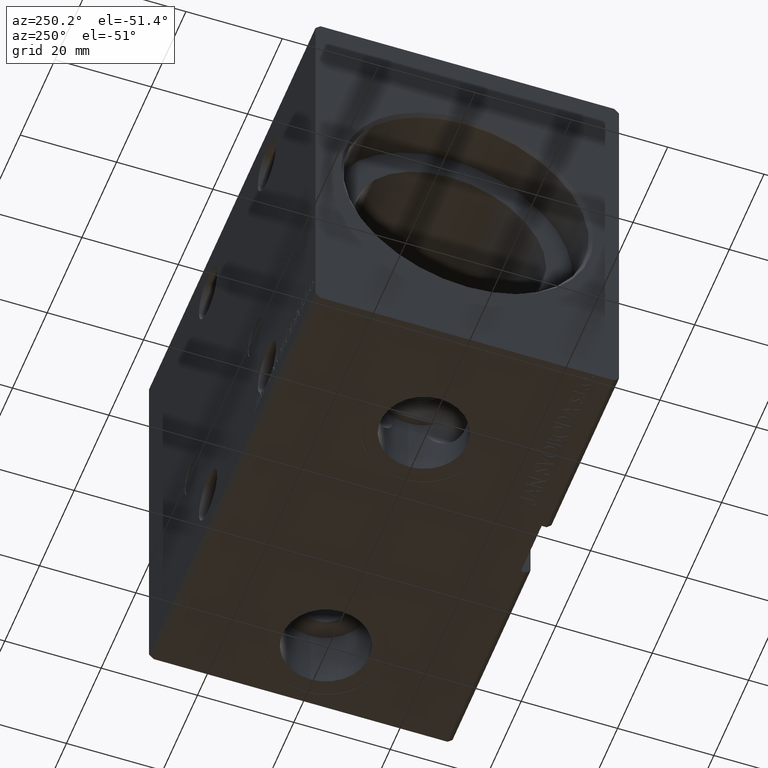
[diagram: clean part render]
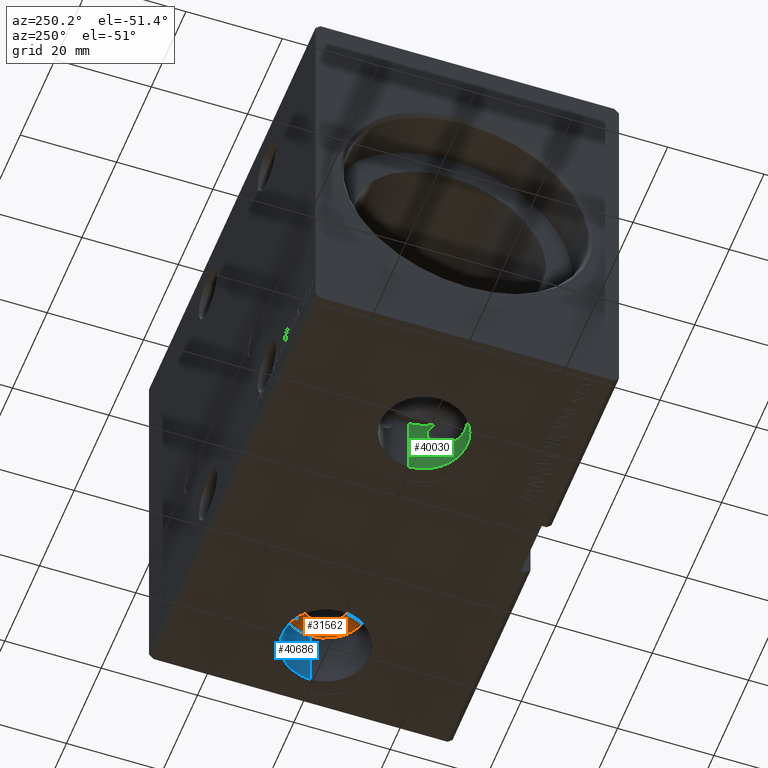
[diagram: same view with three faces highlighted in distinct colors, each labeled with its STEP entity id]
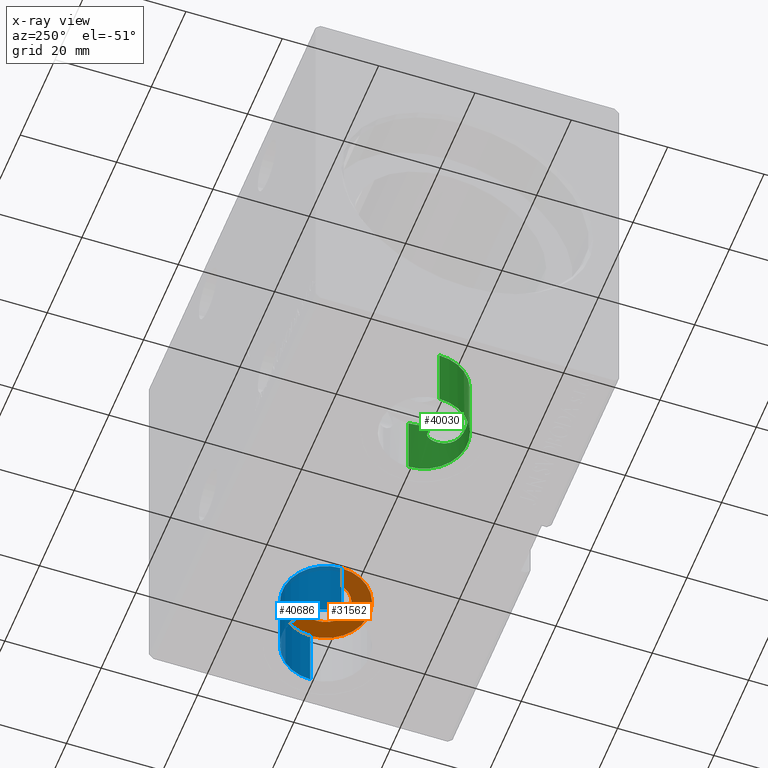
[diagram: x-ray of the same camera — body ghosted, the three highlighted faces saturated]
A machine part, auxiliary view with three faces highlighted in distinct colors.
The next image is the same camera in x-ray (body ghosted, the three faces saturated) — at least one of them is partly hidden behind the body in this view.
Their STEP definitions:

[orange] entity #31562 — the highlighted planar face has unit normal (0, 0, -1).
#402 = DIRECTION ( 'NONE',  ( -1.000000000000000000, 0.000000000000000000, -0.000000000000000000 ) ) ;
#3503 = FACE_OUTER_BOUND ( 'NONE', #39855, .T. ) ;
#3606 = CARTESIAN_POINT ( 'NONE',  ( 86.50000000000001421, -9.299064544017768038E-15, -28.80000000000000782 ) ) ;
#3683 = VERTEX_POINT ( 'NONE', #3606 ) ;
#6401 = PLANE ( 'NONE',  #33082 ) ;
#6933 = DIRECTION ( 'NONE',  ( 0.000000000000000000, 0.000000000000000000, -1.000000000000000000 ) ) ;
#7246 = CIRCLE ( 'NONE', #32384, 8.999999999999994671 ) ;
#8394 = DIRECTION ( 'NONE',  ( 0.000000000000000000, 0.000000000000000000, -1.000000000000000000 ) ) ;
#9289 = FACE_BOUND ( 'NONE', #12474, .T. ) ;
#10017 = VERTEX_POINT ( 'NONE', #32415 ) ;
#10483 = EDGE_CURVE ( 'NONE', #10017, #3683, #16918, .T. ) ;
#11697 = DIRECTION ( 'NONE',  ( -1.000000000000000000, 0.000000000000000000, 0.000000000000000000 ) ) ;
#11901 = DIRECTION ( 'NONE',  ( 0.000000000000000000, 0.000000000000000000, -1.000000000000000000 ) ) ;
#12021 = CARTESIAN_POINT ( 'NONE',  ( 72.50000000000001421, -9.911387943591445357E-15, -28.80000000000000782 ) ) ;
#12474 = EDGE_LOOP ( 'NONE', ( #14365, #15870 ) ) ;
#13137 = DIRECTION ( 'NONE',  ( -1.000000000000000000, 0.000000000000000000, 0.000000000000000000 ) ) ;
#14365 = ORIENTED_EDGE ( 'NONE', *, *, #10483, .F. ) ;
#15870 = ORIENTED_EDGE ( 'NONE', *, *, #22717, .F. ) ;
#16918 = CIRCLE ( 'NONE', #20236, 5.000000000000004441 ) ;
#17228 = CIRCLE ( 'NONE', #25181, 8.999999999999994671 ) ;
#18458 = AXIS2_PLACEMENT_3D ( 'NONE', #24132, #8394, #11697 ) ;
#20236 = AXIS2_PLACEMENT_3D ( 'NONE', #22416, #28632, #31736 ) ;
#22416 = CARTESIAN_POINT ( 'NONE',  ( 81.50000000000000000, -9.911387943591445357E-15, -28.80000000000000782 ) ) ;
#22717 = EDGE_CURVE ( 'NONE', #3683, #10017, #37002, .T. ) ;
#23721 = ORIENTED_EDGE ( 'NONE', *, *, #24680, .T. ) ;
#24132 = CARTESIAN_POINT ( 'NONE',  ( 81.50000000000000000, -9.911387943591445357E-15, -28.80000000000000782 ) ) ;
#24135 = DIRECTION ( 'NONE',  ( -1.000000000000000000, 0.000000000000000000, 0.000000000000000000 ) ) ;
#24680 = EDGE_CURVE ( 'NONE', #36983, #36748, #7246, .T. ) ;
#25181 = AXIS2_PLACEMENT_3D ( 'NONE', #36978, #11901, #24135 ) ;
#28632 = DIRECTION ( 'NONE',  ( 0.000000000000000000, 0.000000000000000000, -1.000000000000000000 ) ) ;
#28755 = DIRECTION ( 'NONE',  ( 0.000000000000000000, 0.000000000000000000, -1.000000000000000000 ) ) ;
#30437 = ORIENTED_EDGE ( 'NONE', *, *, #32139, .T. ) ;
#31562 = ADVANCED_FACE ( 'NONE', ( #9289, #3503 ), #6401, .T. ) ;
#31657 = CARTESIAN_POINT ( 'NONE',  ( 0.000000000000000000, 0.000000000000000000, -28.80000000000000782 ) ) ;
#31736 = DIRECTION ( 'NONE',  ( -1.000000000000000000, 0.000000000000000000, 0.000000000000000000 ) ) ;
#31785 = CARTESIAN_POINT ( 'NONE',  ( 81.50000000000000000, -9.911387943591445357E-15, -28.80000000000000782 ) ) ;
#32139 = EDGE_CURVE ( 'NONE', #36748, #36983, #17228, .T. ) ;
#32384 = AXIS2_PLACEMENT_3D ( 'NONE', #31785, #6933, #13137 ) ;
#32415 = CARTESIAN_POINT ( 'NONE',  ( 76.50000000000000000, -9.911387943591445357E-15, -28.80000000000000782 ) ) ;
#33082 = AXIS2_PLACEMENT_3D ( 'NONE', #31657, #28755, #402 ) ;
#36748 = VERTEX_POINT ( 'NONE', #12021 ) ;
#36978 = CARTESIAN_POINT ( 'NONE',  ( 81.50000000000000000, -9.911387943591445357E-15, -28.80000000000000782 ) ) ;
#36983 = VERTEX_POINT ( 'NONE', #38108 ) ;
#37002 = CIRCLE ( 'NONE', #18458, 5.000000000000004441 ) ;
#38108 = CARTESIAN_POINT ( 'NONE',  ( 90.50000000000000000, -8.809205824358827446E-15, -28.80000000000000782 ) ) ;
#39855 = EDGE_LOOP ( 'NONE', ( #30437, #23721 ) ) ;

[blue] entity #40686 — the highlighted cylindrical surface (partial cylindrical patch) has radius 9 mm, axis along (-0, -0, -1).
#2496 = CARTESIAN_POINT ( 'NONE',  ( 81.50000000000000000, -9.911387943591445357E-15, -28.80000000000000782 ) ) ;
#3121 = ORIENTED_EDGE ( 'NONE', *, *, #11670, .T. ) ;
#5258 = DIRECTION ( 'NONE',  ( -0.000000000000000000, -0.000000000000000000, -1.000000000000000000 ) ) ;
#6004 = CYLINDRICAL_SURFACE ( 'NONE', #18753, 8.999999999999994671 ) ;
#6618 = CARTESIAN_POINT ( 'NONE',  ( 90.50000000000000000, -8.809205824358827446E-15, -42.40000000000000568 ) ) ;
#8212 = ORIENTED_EDGE ( 'NONE', *, *, #26938, .T. ) ;
#8322 = ORIENTED_EDGE ( 'NONE', *, *, #32139, .F. ) ;
#8900 = DIRECTION ( 'NONE',  ( -0.000000000000000000, -0.000000000000000000, -1.000000000000000000 ) ) ;
#10211 = EDGE_CURVE ( 'NONE', #36983, #36923, #29907, .T. ) ;
#10947 = LINE ( 'NONE', #39339, #18301 ) ;
#11670 = EDGE_CURVE ( 'NONE', #36748, #17475, #10947, .T. ) ;
#11901 = DIRECTION ( 'NONE',  ( 0.000000000000000000, 0.000000000000000000, -1.000000000000000000 ) ) ;
#12021 = CARTESIAN_POINT ( 'NONE',  ( 72.50000000000001421, -9.911387943591445357E-15, -28.80000000000000782 ) ) ;
#13851 = DIRECTION ( 'NONE',  ( -0.000000000000000000, -0.000000000000000000, -1.000000000000000000 ) ) ;
#17228 = CIRCLE ( 'NONE', #25181, 8.999999999999994671 ) ;
#17475 = VERTEX_POINT ( 'NONE', #20985 ) ;
#17623 = DIRECTION ( 'NONE',  ( 0.000000000000000000, 0.000000000000000000, -1.000000000000000000 ) ) ;
#18301 = VECTOR ( 'NONE', #13851, 1000.000000000000000 ) ;
#18548 = CIRCLE ( 'NONE', #37753, 8.999999999999994671 ) ;
#18753 = AXIS2_PLACEMENT_3D ( 'NONE', #2496, #8900, #27957 ) ;
#20466 = ORIENTED_EDGE ( 'NONE', *, *, #10211, .F. ) ;
#20985 = CARTESIAN_POINT ( 'NONE',  ( 72.50000000000001421, -9.911387943591445357E-15, -42.40000000000000568 ) ) ;
#21196 = CARTESIAN_POINT ( 'NONE',  ( 90.50000000000000000, -8.809205824358827446E-15, -28.80000000000000782 ) ) ;
#21312 = EDGE_LOOP ( 'NONE', ( #20466, #8322, #3121, #8212 ) ) ;
#24135 = DIRECTION ( 'NONE',  ( -1.000000000000000000, 0.000000000000000000, 0.000000000000000000 ) ) ;
#25181 = AXIS2_PLACEMENT_3D ( 'NONE', #36978, #11901, #24135 ) ;
#26938 = EDGE_CURVE ( 'NONE', #17475, #36923, #18548, .T. ) ;
#27559 = DIRECTION ( 'NONE',  ( -1.000000000000000000, 0.000000000000000000, 0.000000000000000000 ) ) ;
#27957 = DIRECTION ( 'NONE',  ( -1.000000000000000000, 0.000000000000000000, 0.000000000000000000 ) ) ;
#29907 = LINE ( 'NONE', #21196, #37461 ) ;
#30468 = CARTESIAN_POINT ( 'NONE',  ( 81.50000000000000000, -9.911387943591445357E-15, -42.40000000000000568 ) ) ;
#32139 = EDGE_CURVE ( 'NONE', #36748, #36983, #17228, .T. ) ;
#36748 = VERTEX_POINT ( 'NONE', #12021 ) ;
#36923 = VERTEX_POINT ( 'NONE', #6618 ) ;
#36978 = CARTESIAN_POINT ( 'NONE',  ( 81.50000000000000000, -9.911387943591445357E-15, -28.80000000000000782 ) ) ;
#36983 = VERTEX_POINT ( 'NONE', #38108 ) ;
#37461 = VECTOR ( 'NONE', #5258, 1000.000000000000000 ) ;
#37486 = FACE_OUTER_BOUND ( 'NONE', #21312, .T. ) ;
#37753 = AXIS2_PLACEMENT_3D ( 'NONE', #30468, #17623, #27559 ) ;
#38108 = CARTESIAN_POINT ( 'NONE',  ( 90.50000000000000000, -8.809205824358827446E-15, -28.80000000000000782 ) ) ;
#39339 = CARTESIAN_POINT ( 'NONE',  ( 72.50000000000001421, -9.911387943591445357E-15, -28.80000000000000782 ) ) ;
#40686 = ADVANCED_FACE ( 'NONE', ( #37486 ), #6004, .F. ) ;

[green] entity #40030 — the highlighted cylindrical surface (partial cylindrical patch) has radius 9 mm, axis along (-0, -0, -1).
#374 = CARTESIAN_POINT ( 'NONE',  ( 31.40682111085803996, -6.336490055253520381, -35.51646266891867754 ) ) ;
#759 = CARTESIAN_POINT ( 'NONE',  ( 23.03834888611822151, -8.784446765826636749, -33.27765657024913537 ) ) ;
#1395 = AXIS2_PLACEMENT_3D ( 'NONE', #40851, #27601, #12264 ) ;
#1473 = LINE ( 'NONE', #27134, #28327 ) ;
#1538 = ORIENTED_EDGE ( 'NONE', *, *, #11486, .F. ) ;
#1730 = CARTESIAN_POINT ( 'NONE',  ( 25.80280332647018682, -8.966720906279062930, -36.27372584527573451 ) ) ;
#2104 = EDGE_CURVE ( 'NONE', #2602, #2901, #12690, .T. ) ;
#2602 = VERTEX_POINT ( 'NONE', #3439 ) ;
#2901 = VERTEX_POINT ( 'NONE', #4415 ) ;
#2923 = CARTESIAN_POINT ( 'NONE',  ( 25.00000000000000000, -2.665753871451547918E-15, -28.80000000000000782 ) ) ;
#3439 = CARTESIAN_POINT ( 'NONE',  ( 34.00000000000000000, -1.563571752218929810E-15, -42.40000000000000568 ) ) ;
#3470 = CARTESIAN_POINT ( 'NONE',  ( 32.88997847107852124, -4.333604162310006558, -29.57671200896456654 ) ) ;
#3598 = ORIENTED_EDGE ( 'NONE', *, *, #32610, .F. ) ;
#3862 = CARTESIAN_POINT ( 'NONE',  ( 28.00000000000009592, -8.485281374238560659, -36.75000000000000000 ) ) ;
#3877 = CARTESIAN_POINT ( 'NONE',  ( 29.22269784940499093, -7.952126355574261396, -36.61103847274182499 ) ) ;
#4400 = CARTESIAN_POINT ( 'NONE',  ( 28.00000000000009592, -8.485281374238560659, -36.75000000000000000 ) ) ;
#4415 = CARTESIAN_POINT ( 'NONE',  ( 16.00000000000000000, -2.665753871451547918E-15, -42.40000000000000568 ) ) ;
#4842 = CARTESIAN_POINT ( 'NONE',  ( 23.27059274189552340, -8.832775809210357210, -29.20894511765796153 ) ) ;
#4874 = ORIENTED_EDGE ( 'NONE', *, *, #2104, .T. ) ;
#5264 = ORIENTED_EDGE ( 'NONE', *, *, #29942, .F. ) ;
#5300 = DIRECTION ( 'NONE',  ( -0.000000000000000000, -0.000000000000000000, -1.000000000000000000 ) ) ;
#5320 = VERTEX_POINT ( 'NONE', #11740 ) ;
#5635 = DIRECTION ( 'NONE',  ( 0.000000000000000000, 0.000000000000000000, -1.000000000000000000 ) ) ;
#5883 = B_SPLINE_CURVE_WITH_KNOTS ( 'NONE', 3,
 ( #3862, #10065, #10261, #39634, #7939, #6964, #20782, #1730, #25800, #16486, #11241, #36527, #29116, #17670, #35543, #35139, #759, #20574, #23881, #38657, #29894, #33211, #8154, #28912, #7736, #4842, #26981, #26009 ),
 .UNSPECIFIED., .F., .F.,
 ( 4, 2, 2, 2, 2, 2, 2, 2, 2, 2, 2, 2, 2, 4 ),
 ( 0.01291363936566357340, 0.01361175604324377404, 0.01430987272082397468, 0.01500798939840417533, 0.01570610607598437597, 0.01640422275356457488, 0.01710233943114477725, 0.01849857278630519242, 0.01989480614146561105, 0.02059292281904582383, 0.02129103949662604356, 0.02268727285178648648, 0.02338538952936671314, 0.02408350620694693980 ),
 .UNSPECIFIED. ) ;
#6964 = CARTESIAN_POINT ( 'NONE',  ( 26.44890769679656728, -8.885417148570533996, -36.52077516330830065 ) ) ;
#6980 = CARTESIAN_POINT ( 'NONE',  ( 28.98517754201990115, -8.074007388929286932, -36.66256190678087279 ) ) ;
#7185 = CARTESIAN_POINT ( 'NONE',  ( 32.69212753593811982, -4.675829051438523898, -33.86519840367557777 ) ) ;
#7434 = VERTEX_POINT ( 'NONE', #16628 ) ;
#7736 = CARTESIAN_POINT ( 'NONE',  ( 23.08708755828483206, -8.794858950005247422, -29.63465369784726278 ) ) ;
#7939 = CARTESIAN_POINT ( 'NONE',  ( 26.88824261936819227, -8.802528683756118966, -36.63595814820964591 ) ) ;
#8154 = CARTESIAN_POINT ( 'NONE',  ( 22.82185515507104867, -8.733399877350683127, -30.51888342165216628 ) ) ;
#9865 = CARTESIAN_POINT ( 'NONE',  ( 28.49971745761768815, -8.295975715655792726, -36.73191195388432106 ) ) ;
#10042 = AXIS2_PLACEMENT_3D ( 'NONE', #25081, #5635, #24879 ) ;
#10065 = CARTESIAN_POINT ( 'NONE',  ( 27.78180268124343755, -8.562425776103323116, -36.75000000000000711 ) ) ;
#10107 = CARTESIAN_POINT ( 'NONE',  ( 25.00000000000000000, -2.665753871451547918E-15, -28.80000000000000782 ) ) ;
#10261 = CARTESIAN_POINT ( 'NONE',  ( 27.55898194793435252, -8.631660365798145662, -36.73632918673811787 ) ) ;
#10274 = CARTESIAN_POINT ( 'NONE',  ( 33.24838697486192984, -3.600573145518977114, -31.80232776514764481 ) ) ;
#11241 = CARTESIAN_POINT ( 'NONE',  ( 24.99615880545296775, -9.001891166895228835, -35.81200368511887433 ) ) ;
#11292 = CIRCLE ( 'NONE', #1395, 9.000000000000001776 ) ;
#11486 = EDGE_CURVE ( 'NONE', #7434, #5320, #12992, .T. ) ;
#11740 = CARTESIAN_POINT ( 'NONE',  ( 16.00000000000000000, -2.665753871451547918E-15, -28.80000000000000782 ) ) ;
#12264 = DIRECTION ( 'NONE',  ( -1.000000000000000000, 0.000000000000000000, 0.000000000000000000 ) ) ;
#12634 = DIRECTION ( 'NONE',  ( -1.000000000000000000, 0.000000000000000000, 0.000000000000000000 ) ) ;
#12690 = CIRCLE ( 'NONE', #10042, 9.000000000000001776 ) ;
#12981 = CARTESIAN_POINT ( 'NONE',  ( 32.00127014616709431, -5.672801715841330861, -34.92465175887961948 ) ) ;
#12992 = CIRCLE ( 'NONE', #36158, 9.000000000000001776 ) ;
#13184 = CARTESIAN_POINT ( 'NONE',  ( 32.87240420797046880, -4.365484547417698202, -33.46720653120355138 ) ) ;
#13586 = CARTESIAN_POINT ( 'NONE',  ( 32.26259123308183518, -5.330200586698289555, -34.59367876446104617 ) ) ;
#15883 = CARTESIAN_POINT ( 'NONE',  ( 32.50249930594109316, -4.971167283883480614, -28.80000000000000782 ) ) ;
#16093 = CARTESIAN_POINT ( 'NONE',  ( 32.96902614846746360, -4.185280637644433810, -29.78916438976628456 ) ) ;
#16311 = VERTEX_POINT ( 'NONE', #28704 ) ;
#16486 = CARTESIAN_POINT ( 'NONE',  ( 25.18903526593379993, -9.000267506207924484, -35.94012775998812259 ) ) ;
#16628 = CARTESIAN_POINT ( 'NONE',  ( 23.49750069405891040, -8.873696852814312308, -28.80000000000000782 ) ) ;
#16705 = CARTESIAN_POINT ( 'NONE',  ( 32.61242544197731519, -4.805266457735416274, -28.98331198192884628 ) ) ;
#17130 = CYLINDRICAL_SURFACE ( 'NONE', #38594, 9.000000000000001776 ) ;
#17670 = CARTESIAN_POINT ( 'NONE',  ( 23.95726430294239861, -8.945460866260507515, -34.88153592072618636 ) ) ;
#19183 = CARTESIAN_POINT ( 'NONE',  ( 34.00000000000000000, -1.563571752218929810E-15, -28.80000000000000782 ) ) ;
#19414 = CARTESIAN_POINT ( 'NONE',  ( 32.95326830917984040, -4.215225687027825963, -33.25562162745016792 ) ) ;
#19610 = CARTESIAN_POINT ( 'NONE',  ( 31.07321886333549443, -6.659957587000611134, -35.77930101341501512 ) ) ;
#19919 = ORIENTED_EDGE ( 'NONE', *, *, #30858, .T. ) ;
#20034 = EDGE_CURVE ( 'NONE', #5320, #2901, #1473, .T. ) ;
#20574 = CARTESIAN_POINT ( 'NONE',  ( 22.86212622378299031, -8.742604917044038970, -32.60391993553432854 ) ) ;
#20782 = CARTESIAN_POINT ( 'NONE',  ( 26.23167147769406427, -8.917934870984902673, -36.44865091769698751 ) ) ;
#21040 = LINE ( 'NONE', #33680, #24515 ) ;
#22423 = EDGE_LOOP ( 'NONE', ( #3598, #19919, #4874, #33140, #1538, #5264, #30206 ) ) ;
#22513 = CARTESIAN_POINT ( 'NONE',  ( 28.25226097365503364, -8.396093651688483206, -36.75000000000001421 ) ) ;
#22724 = CARTESIAN_POINT ( 'NONE',  ( 29.89057914193943688, -7.559473639547501733, -36.40300476741294489 ) ) ;
#22749 = DIRECTION ( 'NONE',  ( -1.000000000000000000, 0.000000000000000000, 0.000000000000000000 ) ) ;
#23881 = CARTESIAN_POINT ( 'NONE',  ( 22.81783157993402256, -8.731494617107420808, -32.37260203187950935 ) ) ;
#24515 = VECTOR ( 'NONE', #5300, 1000.000000000000000 ) ;
#24669 = DIRECTION ( 'NONE',  ( 0.000000000000000000, 0.000000000000000000, -1.000000000000000000 ) ) ;
#24879 = DIRECTION ( 'NONE',  ( -1.000000000000000000, 0.000000000000000000, 0.000000000000000000 ) ) ;
#25081 = CARTESIAN_POINT ( 'NONE',  ( 25.00000000000000000, -2.665753871451547918E-15, -42.40000000000000568 ) ) ;
#25416 = CARTESIAN_POINT ( 'NONE',  ( 32.59211834536794328, -4.837231280210447792, -34.05332277271028119 ) ) ;
#25800 = CARTESIAN_POINT ( 'NONE',  ( 25.59139474755289712, -8.982805896134886225, -36.17063999887223247 ) ) ;
#26009 = CARTESIAN_POINT ( 'NONE',  ( 23.49750069405891040, -8.873696852814312308, -28.80000000000000782 ) ) ;
#26022 = CARTESIAN_POINT ( 'NONE',  ( 33.10246986897183774, -3.920705777433834527, -30.24183443631941870 ) ) ;
#26220 = CARTESIAN_POINT ( 'NONE',  ( 33.14534123172962410, -3.829195150338681852, -32.57419036198258055 ) ) ;
#26981 = CARTESIAN_POINT ( 'NONE',  ( 23.37738945160329607, -8.853359550174989323, -29.00029658733043547 ) ) ;
#27134 = CARTESIAN_POINT ( 'NONE',  ( 16.00000000000000000, -2.665753871451547918E-15, -28.80000000000000782 ) ) ;
#27601 = DIRECTION ( 'NONE',  ( 0.000000000000000000, 0.000000000000000000, -1.000000000000000000 ) ) ;
#28327 = VECTOR ( 'NONE', #39367, 1000.000000000000000 ) ;
#28704 = CARTESIAN_POINT ( 'NONE',  ( 32.50249930594109316, -4.971167283883480614, -28.80000000000000782 ) ) ;
#28912 = CARTESIAN_POINT ( 'NONE',  ( 23.00995675461132706, -8.777464040215880559, -29.85218725184136090 ) ) ;
#29116 = CARTESIAN_POINT ( 'NONE',  ( 24.44994982000762818, -8.984686236058527342, -35.37474424890113056 ) ) ;
#29130 = CARTESIAN_POINT ( 'NONE',  ( 28.00000000000009592, -8.485281374238560659, -36.75000000000000000 ) ) ;
#29343 = CARTESIAN_POINT ( 'NONE',  ( 30.50533783128135568, -7.123974380155897457, -36.11892088993678129 ) ) ;
#29894 = CARTESIAN_POINT ( 'NONE',  ( 22.74804822313883790, -8.713708641842128344, -31.68149027390553840 ) ) ;
#29942 = EDGE_CURVE ( 'NONE', #38668, #7434, #5883, .T. ) ;
#30206 = ORIENTED_EDGE ( 'NONE', *, *, #34290, .F. ) ;
#30858 = EDGE_CURVE ( 'NONE', #31927, #2602, #21040, .T. ) ;
#31836 = CARTESIAN_POINT ( 'NONE',  ( 32.71187504199514962, -4.643152877768041975, -29.17423996665695185 ) ) ;
#31927 = VERTEX_POINT ( 'NONE', #19183 ) ;
#32610 = EDGE_CURVE ( 'NONE', #31927, #16311, #11292, .T. ) ;
#33087 = FACE_OUTER_BOUND ( 'NONE', #22423, .T. ) ;
#33140 = ORIENTED_EDGE ( 'NONE', *, *, #20034, .F. ) ;
#33211 = CARTESIAN_POINT ( 'NONE',  ( 22.75460823258611143, -8.715402240385634158, -30.98803325270438691 ) ) ;
#33680 = CARTESIAN_POINT ( 'NONE',  ( 34.00000000000000000, -1.563571752218930007E-15, -28.80000000000000782 ) ) ;
#33833 = B_SPLINE_CURVE_WITH_KNOTS ( 'NONE', 3,
 ( #15883, #16705, #31836, #3470, #16093, #26022, #38671, #35153, #35358, #10274, #35559, #26220, #38471, #19414, #13184, #7185, #25416, #13586, #12981, #374, #19610, #29343, #38871, #22724, #38265, #3877, #6980, #9865, #22513, #29130 ),
 .UNSPECIFIED., .F., .F.,
 ( 4, 2, 2, 2, 2, 2, 2, 2, 2, 2, 2, 2, 2, 2, 4 ),
 ( 0.000000000000000000, 0.0008071024603539738796, 0.001614204920707947759, 0.002421307381061921313, 0.003228409841415895518, 0.004035512301769869289, 0.004842614762123842627, 0.005649717222477816832, 0.006456819682831791037, 0.008071024603539740314, 0.009685229524247690458, 0.01049233198460166119, 0.01129943444495563019, 0.01210653690530960266, 0.01291363936566357340 ),
 .UNSPECIFIED. ) ;
#34290 = EDGE_CURVE ( 'NONE', #16311, #38668, #33833, .T. ) ;
#35139 = CARTESIAN_POINT ( 'NONE',  ( 23.21242691909567668, -8.823826534343449879, -33.70431742450200119 ) ) ;
#35153 = CARTESIAN_POINT ( 'NONE',  ( 33.23160277185719025, -3.639918902289857705, -30.99046211007217977 ) ) ;
#35358 = CARTESIAN_POINT ( 'NONE',  ( 33.25144789116190225, -3.593552888541374113, -31.25656014728340182 ) ) ;
#35543 = CARTESIAN_POINT ( 'NONE',  ( 23.67579958464197887, -8.905157241044252103, -34.51349665352065443 ) ) ;
#35559 = CARTESIAN_POINT ( 'NONE',  ( 33.22560366286070632, -3.653595990558375473, -32.06699883898451731 ) ) ;
#36158 = AXIS2_PLACEMENT_3D ( 'NONE', #2923, #24669, #12634 ) ;
#36195 = DIRECTION ( 'NONE',  ( -0.000000000000000000, -0.000000000000000000, -1.000000000000000000 ) ) ;
#36527 = CARTESIAN_POINT ( 'NONE',  ( 24.62713621548751775, -8.994166550248049674, -35.52991657403234882 ) ) ;
#38265 = CARTESIAN_POINT ( 'NONE',  ( 29.67436925629790423, -7.695307840376844233, -36.48138453588469332 ) ) ;
#38471 = CARTESIAN_POINT ( 'NONE',  ( 33.08962436763945902, -3.947224592150487599, -32.80873910227624890 ) ) ;
#38594 = AXIS2_PLACEMENT_3D ( 'NONE', #10107, #36195, #22749 ) ;
#38657 = CARTESIAN_POINT ( 'NONE',  ( 22.76106731078869672, -8.717111773706365696, -31.91217486323479235 ) ) ;
#38668 = VERTEX_POINT ( 'NONE', #4400 ) ;
#38671 = CARTESIAN_POINT ( 'NONE',  ( 33.15626062017206976, -3.805746510833896146, -30.47908235364516116 ) ) ;
#38871 = CARTESIAN_POINT ( 'NONE',  ( 30.30560158851340091, -7.274200838205569397, -36.22207015579552802 ) ) ;
#39367 = DIRECTION ( 'NONE',  ( -0.000000000000000000, -0.000000000000000000, -1.000000000000000000 ) ) ;
#39634 = CARTESIAN_POINT ( 'NONE',  ( 27.11034434197095777, -8.752165220027299242, -36.67901082102268617 ) ) ;
#40030 = ADVANCED_FACE ( 'NONE', ( #33087 ), #17130, .F. ) ;
#40851 = CARTESIAN_POINT ( 'NONE',  ( 25.00000000000000000, -2.665753871451547918E-15, -28.80000000000000782 ) ) ;